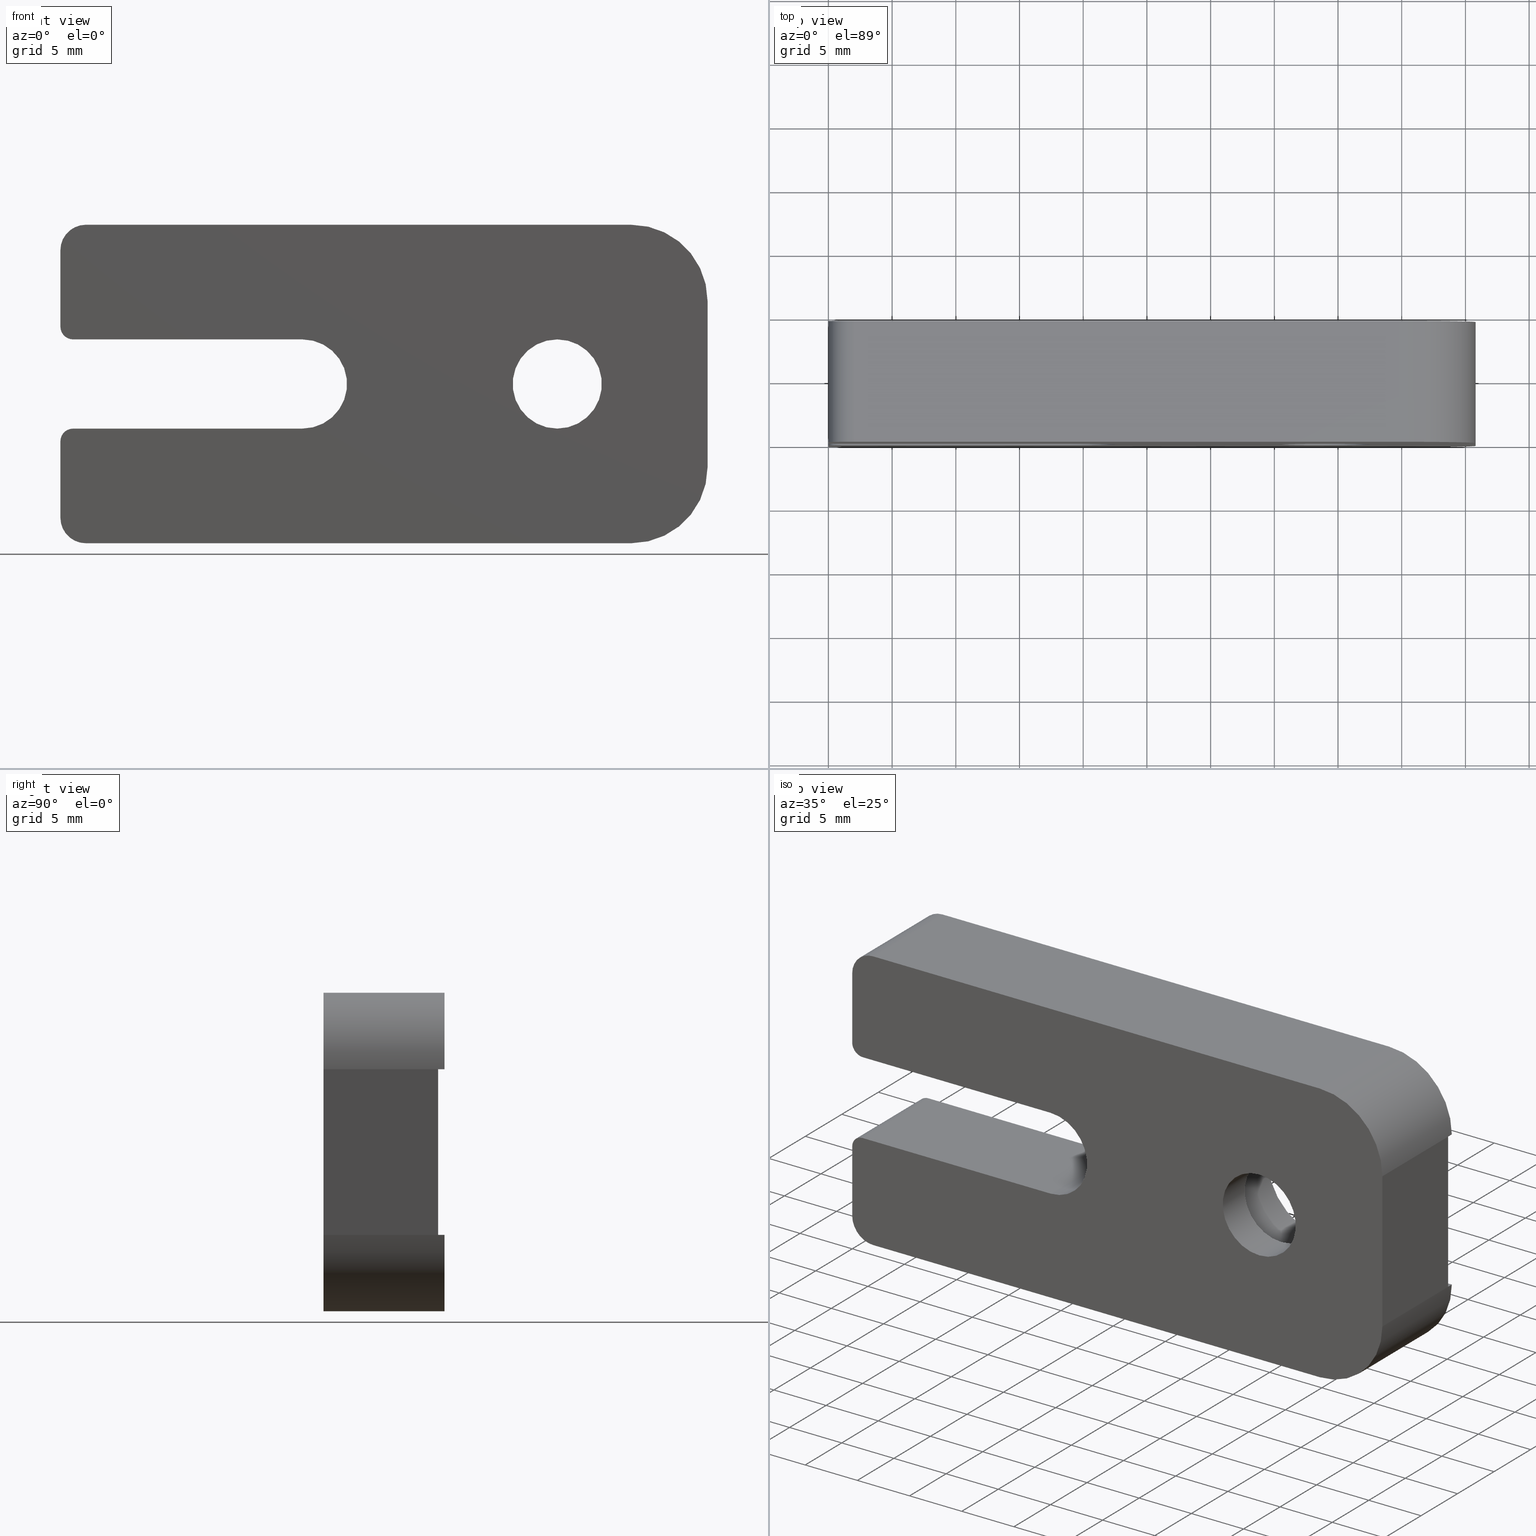
[diagram: canonical four-view strip — front | top / right | iso, engineering-drawing reading convention]
A machine part, canonical four-view strip (front | top / right | iso — engineering-drawing reading convention). The complete STEP part file that produces these views, byte-faithful:
ISO-10303-21;
HEADER;
FILE_DESCRIPTION (( 'STEP AP203' ),
    '1' );
FILE_NAME ('SB-05.step',
    '2017-01-11T07:28:07',
    ( '�K�P' ),
    ( '' ),
    'SwSTEP 2.0',
    'SolidWorks 2012',
    '' );
FILE_SCHEMA (( 'CONFIG_CONTROL_DESIGN' ));
ENDSEC;

DATA;
#1 = MANIFOLD_SOLID_BREP ( '�ꨤ3', #235 ) ;
#2 = UNCERTAINTY_MEASURE_WITH_UNIT (LENGTH_MEASURE( 1.000000000000000100E-005 ), #204, 'distance_accuracy_value', 'NONE');
#3 = ADVANCED_BREP_SHAPE_REPRESENTATION ( 'SB-05', ( #1, #756 ), #732 ) ;
#4 = EDGE_CURVE ( 'NONE', #706, #721, #658, .T. ) ;
#5 = EDGE_CURVE ( 'NONE', #703, #691, #655, .T. ) ;
#6 = EDGE_CURVE ( 'NONE', #712, #718, #659, .T. ) ;
#7 = AXIS2_PLACEMENT_3D ( 'NONE', #390, #383, #438 ) ;
#8 = EDGE_CURVE ( 'NONE', #709, #713, #656, .T. ) ;
#9 = EDGE_CURVE ( 'NONE', #704, #708, #653, .T. ) ;
#10 = EDGE_CURVE ( 'NONE', #698, #713, #651, .T. ) ;
#11 = EDGE_CURVE ( 'NONE', #710, #711, #649, .T. ) ;
#12 = AXIS2_PLACEMENT_3D ( 'NONE', #379, #350, #395 ) ;
#13 = EDGE_CURVE ( 'NONE', #698, #705, #647, .T. ) ;
#14 = AXIS2_PLACEMENT_3D ( 'NONE', #378, #420, #415 ) ;
#15 = AXIS2_PLACEMENT_3D ( 'NONE', #122, #80, #79 ) ;
#16 = EDGE_CURVE ( 'NONE', #688, #699, #643, .T. ) ;
#17 = EDGE_CURVE ( 'NONE', #530, #530, #645, .T. ) ;
#18 = EDGE_CURVE ( 'NONE', #717, #718, #639, .T. ) ;
#19 = EDGE_CURVE ( 'NONE', #700, #701, #642, .T. ) ;
#20 = EDGE_CURVE ( 'NONE', #702, #699, #640, .T. ) ;
#21 = EDGE_CURVE ( 'NONE', #700, #703, #636, .T. ) ;
#22 = AXIS2_PLACEMENT_3D ( 'NONE', #92, #118, #114 ) ;
#23 = EDGE_CURVE ( 'NONE', #721, #696, #634, .T. ) ;
#24 = EDGE_CURVE ( 'NONE', #699, #690, #635, .T. ) ;
#25 = EDGE_CURVE ( 'NONE', #694, #692, #631, .T. ) ;
#26 = EDGE_CURVE ( 'NONE', #694, #702, #633, .T. ) ;
#27 = EDGE_CURVE ( 'NONE', #718, #716, #627, .T. ) ;
#28 = EDGE_CURVE ( 'NONE', #691, #710, #625, .T. ) ;
#29 = AXIS2_PLACEMENT_3D ( 'NONE', #368, #367, #399 ) ;
#30 = AXIS2_PLACEMENT_3D ( 'NONE', #87, #112, #83 ) ;
#31 = EDGE_CURVE ( 'NONE', #696, #689, #624, .T. ) ;
#32 = EDGE_CURVE ( 'NONE', #708, #711, #622, .T. ) ;
#33 = EDGE_CURVE ( 'NONE', #525, #525, #621, .T. ) ;
#34 = AXIS2_PLACEMENT_3D ( 'NONE', #111, #93, #124 ) ;
#35 = AXIS2_PLACEMENT_3D ( 'NONE', #414, #441, #384 ) ;
#36 = EDGE_CURVE ( 'NONE', #715, #716, #618, .T. ) ;
#37 = AXIS2_PLACEMENT_3D ( 'NONE', #416, #365, #422 ) ;
#38 = EDGE_CURVE ( 'NONE', #719, #720, #629, .T. ) ;
#39 = EDGE_CURVE ( 'NONE', #701, #707, #615, .T. ) ;
#40 = EDGE_CURVE ( 'NONE', #720, #715, #614, .T. ) ;
#41 = EDGE_CURVE ( 'NONE', #716, #719, #612, .T. ) ;
#42 = AXIS2_PLACEMENT_3D ( 'NONE', #95, #100, #103 ) ;
#43 = EDGE_CURVE ( 'NONE', #689, #690, #610, .T. ) ;
#44 = EDGE_CURVE ( 'NONE', #712, #714, #608, .T. ) ;
#45 = AXIS2_PLACEMENT_3D ( 'NONE', #126, #123, #116 ) ;
#46 = EDGE_CURVE ( 'NONE', #714, #717, #606, .T. ) ;
#47 = EDGE_CURVE ( 'NONE', #702, #703, #604, .T. ) ;
#48 = EDGE_CURVE ( 'NONE', #710, #713, #602, .T. ) ;
#49 = EDGE_CURVE ( 'NONE', #690, #692, #600, .T. ) ;
#50 = AXIS2_PLACEMENT_3D ( 'NONE', #408, #434, #373 ) ;
#51 = AXIS2_PLACEMENT_3D ( 'NONE', #442, #410, #380 ) ;
#52 = EDGE_CURVE ( 'NONE', #526, #526, #598, .T. ) ;
#53 = EDGE_CURVE ( 'NONE', #697, #696, #596, .T. ) ;
#54 = AXIS2_PLACEMENT_3D ( 'NONE', #382, #439, #386 ) ;
#55 = EDGE_CURVE ( 'NONE', #695, #697, #619, .T. ) ;
#56 = EDGE_CURVE ( 'NONE', #705, #700, #593, .T. ) ;
#57 = AXIS2_PLACEMENT_3D ( 'NONE', #377, #356, #381 ) ;
#58 = EDGE_CURVE ( 'NONE', #717, #708, #592, .T. ) ;
#59 = EDGE_CURVE ( 'NONE', #688, #697, #590, .T. ) ;
#60 = EDGE_CURVE ( 'NONE', #720, #693, #589, .T. ) ;
#61 = EDGE_CURVE ( 'NONE', #705, #707, #588, .T. ) ;
#62 = EDGE_CURVE ( 'NONE', #707, #709, #587, .T. ) ;
#63 = AXIS2_PLACEMENT_3D ( 'NONE', #125, #99, #351 ) ;
#64 = EDGE_CURVE ( 'NONE', #704, #701, #585, .T. ) ;
#65 = EDGE_CURVE ( 'NONE', #527, #527, #584, .T. ) ;
#66 = EDGE_CURVE ( 'NONE', #695, #719, #581, .T. ) ;
#67 = EDGE_CURVE ( 'NONE', #715, #712, #582, .T. ) ;
#68 = EDGE_CURVE ( 'NONE', #689, #688, #583, .T. ) ;
#69 = EDGE_CURVE ( 'NONE', #694, #691, #580, .T. ) ;
#70 = EDGE_CURVE ( 'NONE', #693, #695, #578, .T. ) ;
#71 = EDGE_CURVE ( 'NONE', #706, #694, #576, .T. ) ;
#72 = EDGE_CURVE ( 'NONE', #721, #692, #574, .T. ) ;
#73 = EDGE_CURVE ( 'NONE', #693, #706, #572, .T. ) ;
#74 = EDGE_CURVE ( 'NONE', #711, #714, #570, .T. ) ;
#75 = EDGE_CURVE ( 'NONE', #691, #698, #568, .T. ) ;
#76 = EDGE_CURVE ( 'NONE', #709, #704, #567, .T. ) ;
#77 = DIRECTION ( 'NONE',  ( 0.0000000000000000000, -0.0000000000000000000, 1.000000000000000000 ) ) ;
#78 = CARTESIAN_POINT ( 'NONE',  ( 0.0000000000000000000, 0.0000000000000000000, 0.0000000000000000000 ) ) ;
#79 = DIRECTION ( 'NONE',  ( 0.0000000000000000000, 0.0000000000000000000, 1.000000000000000000 ) ) ;
#80 = DIRECTION ( 'NONE',  ( -0.0000000000000000000, -1.000000000000000000, -0.0000000000000000000 ) ) ;
#81 = CARTESIAN_POINT ( 'NONE',  ( -1.541976423090495800E-015, 9.500000000000000000, -16.99999999999999600 ) ) ;
#82 = CARTESIAN_POINT ( 'NONE',  ( 0.0000000000000000000, 9.500000000000000000, 0.0000000000000000000 ) ) ;
#83 = DIRECTION ( 'NONE',  ( 1.156482317317871300E-015, 0.0000000000000000000, 1.000000000000000000 ) ) ;
#84 = DIRECTION ( 'NONE',  ( 1.541976423090494400E-015, -0.0000000000000000000, 1.000000000000000000 ) ) ;
#85 = CARTESIAN_POINT ( 'NONE',  ( 0.0000000000000000000, 9.000000000000000000, -19.00000000000000400 ) ) ;
#86 = DIRECTION ( 'NONE',  ( -1.000000000000000000, 0.0000000000000000000, 0.0000000000000000000 ) ) ;
#87 = CARTESIAN_POINT ( 'NONE',  ( 44.79999999999998300, 0.0000000000000000000, -19.00000000000000400 ) ) ;
#88 = DIRECTION ( 'NONE',  ( -0.0000000000000000000, -0.0000000000000000000, 1.000000000000000000 ) ) ;
#89 = DIRECTION ( 'NONE',  ( 1.541976423090494400E-015, -0.0000000000000000000, 1.000000000000000000 ) ) ;
#90 = CARTESIAN_POINT ( 'NONE',  ( 50.79999999999999700, 9.500000000000000000, -6.000000000000003600 ) ) ;
#91 = DIRECTION ( 'NONE',  ( 1.000000000000000000, 0.0000000000000000000, 0.0000000000000000000 ) ) ;
#92 = CARTESIAN_POINT ( 'NONE',  ( 2.000000000000000000, 9.500000000000000000, -2.000000000000000000 ) ) ;
#93 = DIRECTION ( 'NONE',  ( 0.0000000000000000000, 1.000000000000000000, 0.0000000000000000000 ) ) ;
#94 = DIRECTION ( 'NONE',  ( 0.0000000000000000000, 0.0000000000000000000, 1.000000000000000000 ) ) ;
#95 = CARTESIAN_POINT ( 'NONE',  ( 44.79999999999999700, 0.0000000000000000000, -6.000000000000000000 ) ) ;
#96 = CARTESIAN_POINT ( 'NONE',  ( 18.99999999999999600, 0.0000000000000000000, -16.00000000000000000 ) ) ;
#97 = CARTESIAN_POINT ( 'NONE',  ( 50.79999999999999700, 9.500000000000000000, -19.00000000000000400 ) ) ;
#98 = CARTESIAN_POINT ( 'NONE',  ( 44.79999999999999700, 9.500000000000000000, 0.0000000000000000000 ) ) ;
#99 = DIRECTION ( 'NONE',  ( -0.0000000000000000000, -1.000000000000000000, -0.0000000000000000000 ) ) ;
#100 = DIRECTION ( 'NONE',  ( -0.0000000000000000000, -1.000000000000000000, -0.0000000000000000000 ) ) ;
#101 = DIRECTION ( 'NONE',  ( -0.0000000000000000000, -1.000000000000000000, -0.0000000000000000000 ) ) ;
#102 = CARTESIAN_POINT ( 'NONE',  ( -1.387778780781445700E-014, 0.0000000000000000000, -25.00000000000000000 ) ) ;
#103 = DIRECTION ( 'NONE',  ( -1.156482317317871300E-015, 0.0000000000000000000, 1.000000000000000000 ) ) ;
#104 = CARTESIAN_POINT ( 'NONE',  ( 18.99999999999999600, 9.500000000000000000, -16.00000000000000000 ) ) ;
#105 = CARTESIAN_POINT ( 'NONE',  ( 50.79999999999998300, 9.500000000000000000, -19.00000000000000700 ) ) ;
#106 = DIRECTION ( 'NONE',  ( -0.0000000000000000000, 1.000000000000000000, -0.0000000000000000000 ) ) ;
#107 = DIRECTION ( 'NONE',  ( 1.000000000000000000, -0.0000000000000000000, -1.826024711554534200E-016 ) ) ;
#108 = DIRECTION ( 'NONE',  ( -0.0000000000000000000, 1.000000000000000000, -0.0000000000000000000 ) ) ;
#109 = CARTESIAN_POINT ( 'NONE',  ( 18.99999999999999600, 9.500000000000000000, -9.000000000000001800 ) ) ;
#110 = DIRECTION ( 'NONE',  ( -0.0000000000000000000, 1.000000000000000000, -0.0000000000000000000 ) ) ;
#111 = CARTESIAN_POINT ( 'NONE',  ( 38.99999999999999300, 0.0000000000000000000, -12.50000000000000400 ) ) ;
#112 = DIRECTION ( 'NONE',  ( -0.0000000000000000000, -1.000000000000000000, -0.0000000000000000000 ) ) ;
#113 = CARTESIAN_POINT ( 'NONE',  ( 0.0000000000000000000, 9.000000000000000000, -6.000000000000003600 ) ) ;
#114 = DIRECTION ( 'NONE',  ( 0.0000000000000000000, 0.0000000000000000000, 1.000000000000000000 ) ) ;
#115 = CARTESIAN_POINT ( 'NONE',  ( 0.0000000000000000000, 0.0000000000000000000, -15.99999999999999600 ) ) ;
#116 = DIRECTION ( 'NONE',  ( 0.0000000000000000000, 0.0000000000000000000, 1.000000000000000000 ) ) ;
#117 = CARTESIAN_POINT ( 'NONE',  ( 0.0000000000000000000, 9.500000000000000000, -15.99999999999999600 ) ) ;
#118 = DIRECTION ( 'NONE',  ( 0.0000000000000000000, 1.000000000000000000, 0.0000000000000000000 ) ) ;
#119 = CARTESIAN_POINT ( 'NONE',  ( 50.79999999999999700, 9.000000000000000000, -6.000000000000003600 ) ) ;
#120 = DIRECTION ( 'NONE',  ( -1.000000000000000000, 0.0000000000000000000, 0.0000000000000000000 ) ) ;
#121 = DIRECTION ( 'NONE',  ( -1.000000000000000000, -0.0000000000000000000, -0.0000000000000000000 ) ) ;
#122 = CARTESIAN_POINT ( 'NONE',  ( 18.99999999999999600, 0.0000000000000000000, -12.50000000000000000 ) ) ;
#123 = DIRECTION ( 'NONE',  ( 0.0000000000000000000, 1.000000000000000000, 0.0000000000000000000 ) ) ;
#124 = DIRECTION ( 'NONE',  ( 0.0000000000000000000, 0.0000000000000000000, 1.000000000000000000 ) ) ;
#125 = CARTESIAN_POINT ( 'NONE',  ( 38.99999999999999300, 2.999999999999999100, -12.50000000000000400 ) ) ;
#126 = CARTESIAN_POINT ( 'NONE',  ( 44.79999999999998300, 9.500000000000000000, -19.00000000000000400 ) ) ;
#127 = DIRECTION ( 'NONE',  ( -0.0000000000000000000, 1.000000000000000000, -0.0000000000000000000 ) ) ;
#128 = DIRECTION ( 'NONE',  ( -0.0000000000000000000, 1.000000000000000000, -0.0000000000000000000 ) ) ;
#129 = DIRECTION ( 'NONE',  ( 1.000000000000000000, 0.0000000000000000000, -9.130123557772672000E-017 ) ) ;
#130 = CARTESIAN_POINT ( 'NONE',  ( 50.79999999999999700, 9.000000000000000000, -19.00000000000000400 ) ) ;
#131 = DIRECTION ( 'NONE',  ( 0.0000000000000000000, -1.000000000000000000, 0.0000000000000000000 ) ) ;
#132 = ADVANCED_FACE ( 'NONE', ( #562, #597 ), #443, .F. ) ;
#133 = ADVANCED_FACE ( 'NONE', ( #563, #559 ), #433, .F. ) ;
#134 = ADVANCED_FACE ( 'NONE', ( #560 ), #363, .F. ) ;
#135 = ADVANCED_FACE ( 'NONE', ( #561 ), #400, .F. ) ;
#136 = ADVANCED_FACE ( 'NONE', ( #558 ), #364, .F. ) ;
#137 = ADVANCED_FACE ( 'NONE', ( #557 ), #394, .F. ) ;
#138 = ADVANCED_FACE ( 'NONE', ( #556 ), #552, .T. ) ;
#139 = ADVANCED_FACE ( 'NONE', ( #554 ), #550, .T. ) ;
#140 = ADVANCED_FACE ( 'NONE', ( #555 ), #548, .T. ) ;
#141 = ADVANCED_FACE ( 'NONE', ( #565 ), #546, .T. ) ;
#142 = ADVANCED_FACE ( 'NONE', ( #553 ), #544, .T. ) ;
#143 = ADVANCED_FACE ( 'NONE', ( #551 ), #481, .F. ) ;
#144 = ADVANCED_FACE ( 'NONE', ( #547 ), #479, .F. ) ;
#145 = ADVANCED_FACE ( 'NONE', ( #549 ), #473, .F. ) ;
#146 = ADVANCED_FACE ( 'NONE', ( #543 ), #539, .T. ) ;
#147 = ADVANCED_FACE ( 'NONE', ( #541 ), #458, .T. ) ;
#148 = ADVANCED_FACE ( 'NONE', ( #545, #537 ), #535, .F. ) ;
#149 = ADVANCED_FACE ( 'NONE', ( #540, #534 ), #248, .T. ) ;
#150 = ADVANCED_FACE ( 'NONE', ( #538, #532 ), #531, .F. ) ;
#151 = ADVANCED_FACE ( 'NONE', ( #542 ), #251, .T. ) ;
#152 = ADVANCED_FACE ( 'NONE', ( #536 ), #243, .F. ) ;
#153 = ADVANCED_FACE ( 'NONE', ( #533 ), #528, .F. ) ;
#154 = ADVANCED_FACE ( 'NONE', ( #529 ), #161, .F. ) ;
#155 = CARTESIAN_POINT ( 'NONE',  ( 18.99999999999999600, 9.500000000000000000, -9.000000000000000000 ) ) ;
#156 = DESIGN_CONTEXT ( 'detailed design', #213, 'design' ) ;
#157 = PRODUCT_DEFINITION_SHAPE ( 'NONE', 'NONE',  #762 ) ;
#158 = DIRECTION ( 'NONE',  ( -0.0000000000000000000, -1.000000000000000000, -0.0000000000000000000 ) ) ;
#159 = CARTESIAN_POINT ( 'NONE',  ( 18.99999999999999600, 9.500000000000000000, -12.50000000000000000 ) ) ;
#160 = DIRECTION ( 'NONE',  ( 0.0000000000000000000, 0.0000000000000000000, -1.000000000000000000 ) ) ;
#161 = PLANE ( 'NONE',  #726 ) ;
#162 = CARTESIAN_POINT ( 'NONE',  ( 44.79999999999999700, 9.500000000000000000, 0.0000000000000000000 ) ) ;
#163 = CARTESIAN_POINT ( 'NONE',  ( 2.000000000000000000, 9.500000000000000000, 0.0000000000000000000 ) ) ;
#164 = CARTESIAN_POINT ( 'NONE',  ( 18.99999999999999600, 9.500000000000000000, -16.00000000000000000 ) ) ;
#165 = DIRECTION ( 'NONE',  ( -1.826024711554534400E-016, 0.0000000000000000000, -1.000000000000000000 ) ) ;
#166 = DIRECTION ( 'NONE',  ( -1.000000000000000000, 0.0000000000000000000, 1.826024711554534400E-016 ) ) ;
#167 = CARTESIAN_POINT ( 'NONE',  ( 0.0000000000000000000, 0.0000000000000000000, -7.999999999999998200 ) ) ;
#168 = CARTESIAN_POINT ( 'NONE',  ( 2.000000000000000000, 0.0000000000000000000, 0.0000000000000000000 ) ) ;
#169 = CARTESIAN_POINT ( 'NONE',  ( 50.79999999999999700, 9.000000000000000000, -19.00000000000000400 ) ) ;
#170 = CARTESIAN_POINT ( 'NONE',  ( 0.0000000000000000000, 9.000000000000000000, -8.000000000000001800 ) ) ;
#171 = CARTESIAN_POINT ( 'NONE',  ( 50.79999999999999700, 9.500000000000000000, -6.000000000000003600 ) ) ;
#172 = CARTESIAN_POINT ( 'NONE',  ( 50.79999999999999700, 9.000000000000000000, -6.000000000000003600 ) ) ;
#173 = CARTESIAN_POINT ( 'NONE',  ( 0.0000000000000000000, 9.500000000000000000, -2.000000000000000000 ) ) ;
#174 = CARTESIAN_POINT ( 'NONE',  ( 0.0000000000000000000, 0.0000000000000000000, -2.000000000000000000 ) ) ;
#175 = CARTESIAN_POINT ( 'NONE',  ( 50.79999999999998300, 9.500000000000000000, -19.00000000000000400 ) ) ;
#176 = CARTESIAN_POINT ( 'NONE',  ( 44.79999999999999700, 0.0000000000000000000, 0.0000000000000000000 ) ) ;
#177 = CARTESIAN_POINT ( 'NONE',  ( 44.79999999999998300, 0.0000000000000000000, -25.00000000000000000 ) ) ;
#178 = CARTESIAN_POINT ( 'NONE',  ( 1.999999999999989100, 0.0000000000000000000, -25.00000000000000000 ) ) ;
#179 = CARTESIAN_POINT ( 'NONE',  ( 50.79999999999999700, 0.0000000000000000000, -6.000000000000003600 ) ) ;
#180 = CARTESIAN_POINT ( 'NONE',  ( 50.79999999999998300, 0.0000000000000000000, -19.00000000000000700 ) ) ;
#181 = CARTESIAN_POINT ( 'NONE',  ( -1.079383496163346100E-014, 0.0000000000000000000, -22.99999999999999600 ) ) ;
#182 = CARTESIAN_POINT ( 'NONE',  ( 44.79999999999998300, 9.500000000000000000, -25.00000000000000000 ) ) ;
#183 = CARTESIAN_POINT ( 'NONE',  ( 0.0000000000000000000, 9.000000000000000000, -6.000000000000003600 ) ) ;
#184 = CARTESIAN_POINT ( 'NONE',  ( 1.999999999999989100, 9.500000000000000000, -25.00000000000000000 ) ) ;
#185 = CARTESIAN_POINT ( 'NONE',  ( -1.541976423090495800E-015, 0.0000000000000000000, -16.99999999999999600 ) ) ;
#186 = CARTESIAN_POINT ( 'NONE',  ( -1.079383496163346100E-014, 9.500000000000000000, -22.99999999999999600 ) ) ;
#187 = CARTESIAN_POINT ( 'NONE',  ( 0.0000000000000000000, 9.000000000000000000, -19.00000000000000400 ) ) ;
#188 = CARTESIAN_POINT ( 'NONE',  ( 0.0000000000000000000, 9.000000000000000000, -16.99999999999999600 ) ) ;
#189 = CARTESIAN_POINT ( 'NONE',  ( 18.99999999999999600, 9.000000000000000000, -16.00000000000000000 ) ) ;
#190 = CARTESIAN_POINT ( 'NONE',  ( 0.0000000000000000000, 9.500000000000000000, -19.00000000000000400 ) ) ;
#191 = CARTESIAN_POINT ( 'NONE',  ( 1.000000000000000900, 9.000000000000000000, -15.99999999999999600 ) ) ;
#192 = CARTESIAN_POINT ( 'NONE',  ( 18.99999999999999600, 9.000000000000000000, -9.000000000000000000 ) ) ;
#193 = CARTESIAN_POINT ( 'NONE',  ( 18.99999999999999600, 0.0000000000000000000, -9.000000000000001800 ) ) ;
#194 = CARTESIAN_POINT ( 'NONE',  ( 1.000000000000000900, 0.0000000000000000000, -15.99999999999999600 ) ) ;
#195 = CARTESIAN_POINT ( 'NONE',  ( 18.99999999999999600, 0.0000000000000000000, -16.00000000000000000 ) ) ;
#196 = CARTESIAN_POINT ( 'NONE',  ( 1.000000000000000900, 0.0000000000000000000, -8.999999999999998200 ) ) ;
#197 = CARTESIAN_POINT ( 'NONE',  ( 1.000000000000000900, 9.000000000000000000, -8.999999999999998200 ) ) ;
#198 = CARTESIAN_POINT ( 'NONE',  ( 0.0000000000000000000, 9.500000000000000000, -6.000000000000003600 ) ) ;
#199 = CARTESIAN_POINT ( 'NONE',  ( 38.99999999999999300, 2.999999999999999100, -9.000000000000005300 ) ) ;
#200 = CARTESIAN_POINT ( 'NONE',  ( 38.99999999999999300, 0.0000000000000000000, -9.000000000000005300 ) ) ;
#201 = CARTESIAN_POINT ( 'NONE',  ( 38.99999999999999300, 2.999999999999999100, -7.000000000000008000 ) ) ;
#202 = CARTESIAN_POINT ( 'NONE',  ( 38.99999999999999300, 9.000000000000000000, -7.000000000000008000 ) ) ;
#203 = CARTESIAN_POINT ( 'NONE',  ( 0.0000000000000000000, 0.0000000000000000000, 0.0000000000000000000 ) ) ;
#204 =( LENGTH_UNIT ( ) NAMED_UNIT ( * ) SI_UNIT ( .MILLI., .METRE. ) );
#205 =( NAMED_UNIT ( * ) PLANE_ANGLE_UNIT ( ) SI_UNIT ( $, .RADIAN. ) );
#206 =( NAMED_UNIT ( * ) SI_UNIT ( $, .STERADIAN. ) SOLID_ANGLE_UNIT ( ) );
#207 = APPLICATION_PROTOCOL_DEFINITION ( 'international standard', 'config_control_design', 1994, #208 ) ;
#208 = APPLICATION_CONTEXT ( 'configuration controlled 3d designs of mechanical parts and assemblies' ) ;
#209 = DIRECTION ( 'NONE',  ( 0.0000000000000000000, 0.0000000000000000000, 1.000000000000000000 ) ) ;
#210 = DIRECTION ( 'NONE',  ( 1.000000000000000000, 0.0000000000000000000, 0.0000000000000000000 ) ) ;
#211 = MECHANICAL_CONTEXT ( 'NONE', #208, 'mechanical' ) ;
#212 = PERSON_AND_ORGANIZATION_ROLE ( 'design_owner' ) ;
#213 = APPLICATION_CONTEXT ( 'configuration controlled 3d designs of mechanical parts and assemblies' ) ;
#214 = APPLICATION_PROTOCOL_DEFINITION ( 'international standard', 'config_control_design', 1994, #213 ) ;
#215 = APPROVAL_STATUS ( 'not_yet_approved' ) ;
#216 = APPROVAL_ROLE ( '' ) ;
#217 = PERSON_AND_ORGANIZATION_ROLE ( 'creator' ) ;
#218 = DATE_TIME_ROLE ( 'creation_date' ) ;
#219 = APPROVAL_STATUS ( 'not_yet_approved' ) ;
#220 = APPROVAL_ROLE ( '' ) ;
#221 = PERSON_AND_ORGANIZATION_ROLE ( 'creator' ) ;
#222 = PERSON_AND_ORGANIZATION_ROLE ( 'design_supplier' ) ;
#223 = SECURITY_CLASSIFICATION_LEVEL ( 'unclassified' ) ;
#224 = PERSON_AND_ORGANIZATION_ROLE ( 'classification_officer' ) ;
#225 = DATE_TIME_ROLE ( 'classification_date' ) ;
#226 = APPROVAL_STATUS ( 'not_yet_approved' ) ;
#227 = APPROVAL_ROLE ( '' ) ;
#228 = ORIENTED_EDGE ( 'NONE', *, *, #49, .T. ) ;
#229 = ORIENTED_EDGE ( 'NONE', *, *, #17, .F. ) ;
#230 = EDGE_LOOP ( 'NONE', ( #272, #271, #270, #269, #268 ) ) ;
#231 = ORIENTED_EDGE ( 'NONE', *, *, #72, .F. ) ;
#232 = EDGE_LOOP ( 'NONE', ( #237 ) ) ;
#233 = ORIENTED_EDGE ( 'NONE', *, *, #43, .T. ) ;
#234 = ORIENTED_EDGE ( 'NONE', *, *, #23, .T. ) ;
#235 = CLOSED_SHELL ( 'NONE', ( #150, #147, #145, #137, #143, #135, #136, #154, #153, #152, #151, #132, #133, #144, #134, #149, #148, #146, #142, #141, #140, #139, #138 ) ) ;
#236 = EDGE_LOOP ( 'NONE', ( #303, #304, #306, #305, #274 ) ) ;
#237 = ORIENTED_EDGE ( 'NONE', *, *, #33, .F. ) ;
#238 = EDGE_LOOP ( 'NONE', ( #664, #663, #662, #661 ) ) ;
#239 = ORIENTED_EDGE ( 'NONE', *, *, #31, .T. ) ;
#240 = EDGE_LOOP ( 'NONE', ( #255, #254, #253, #723 ) ) ;
#241 = ORIENTED_EDGE ( 'NONE', *, *, #73, .F. ) ;
#242 = CARTESIAN_POINT ( 'NONE',  ( 18.99999999999999600, 9.500000000000000000, -12.50000000000000000 ) ) ;
#243 = PLANE ( 'NONE',  #730 ) ;
#244 = DIRECTION ( 'NONE',  ( 0.0000000000000000000, 1.000000000000000000, 0.0000000000000000000 ) ) ;
#245 = CARTESIAN_POINT ( 'NONE',  ( 38.99999999999999300, 0.0000000000000000000, -12.50000000000000400 ) ) ;
#246 = DIRECTION ( 'NONE',  ( 0.0000000000000000000, -0.0000000000000000000, 1.000000000000000000 ) ) ;
#247 = DIRECTION ( 'NONE',  ( -0.0000000000000000000, 1.000000000000000000, -0.0000000000000000000 ) ) ;
#248 = PLANE ( 'NONE',  #737 ) ;
#249 = DIRECTION ( 'NONE',  ( 0.0000000000000000000, 0.0000000000000000000, 1.000000000000000000 ) ) ;
#250 = CARTESIAN_POINT ( 'NONE',  ( 38.99999999999999300, 2.999999999999999100, -12.50000000000000400 ) ) ;
#251 = PLANE ( 'NONE',  #733 ) ;
#252 = DIRECTION ( 'NONE',  ( 0.0000000000000000000, 1.000000000000000000, 0.0000000000000000000 ) ) ;
#253 = ORIENTED_EDGE ( 'NONE', *, *, #58, .F. ) ;
#254 = ORIENTED_EDGE ( 'NONE', *, *, #32, .F. ) ;
#255 = ORIENTED_EDGE ( 'NONE', *, *, #74, .F. ) ;
#256 = ORIENTED_EDGE ( 'NONE', *, *, #70, .F. ) ;
#257 = ORIENTED_EDGE ( 'NONE', *, *, #66, .F. ) ;
#258 = ORIENTED_EDGE ( 'NONE', *, *, #38, .F. ) ;
#259 = ORIENTED_EDGE ( 'NONE', *, *, #60, .F. ) ;
#260 = ORIENTED_EDGE ( 'NONE', *, *, #76, .F. ) ;
#261 = ORIENTED_EDGE ( 'NONE', *, *, #64, .F. ) ;
#262 = ORIENTED_EDGE ( 'NONE', *, *, #39, .F. ) ;
#263 = ORIENTED_EDGE ( 'NONE', *, *, #62, .F. ) ;
#264 = ORIENTED_EDGE ( 'NONE', *, *, #68, .F. ) ;
#265 = ORIENTED_EDGE ( 'NONE', *, *, #59, .F. ) ;
#266 = ORIENTED_EDGE ( 'NONE', *, *, #53, .F. ) ;
#267 = ORIENTED_EDGE ( 'NONE', *, *, #31, .F. ) ;
#268 = ORIENTED_EDGE ( 'NONE', *, *, #13, .F. ) ;
#269 = ORIENTED_EDGE ( 'NONE', *, *, #56, .F. ) ;
#270 = ORIENTED_EDGE ( 'NONE', *, *, #21, .F. ) ;
#271 = ORIENTED_EDGE ( 'NONE', *, *, #5, .F. ) ;
#272 = ORIENTED_EDGE ( 'NONE', *, *, #75, .F. ) ;
#273 = ORIENTED_EDGE ( 'NONE', *, *, #75, .T. ) ;
#274 = ORIENTED_EDGE ( 'NONE', *, *, #25, .T. ) ;
#275 = ORIENTED_EDGE ( 'NONE', *, *, #28, .F. ) ;
#276 = ORIENTED_EDGE ( 'NONE', *, *, #48, .F. ) ;
#277 = ORIENTED_EDGE ( 'NONE', *, *, #10, .T. ) ;
#278 = ORIENTED_EDGE ( 'NONE', *, *, #4, .T. ) ;
#279 = ORIENTED_EDGE ( 'NONE', *, *, #71, .F. ) ;
#280 = ORIENTED_EDGE ( 'NONE', *, *, #25, .F. ) ;
#281 = ORIENTED_EDGE ( 'NONE', *, *, #72, .T. ) ;
#282 = ORIENTED_EDGE ( 'NONE', *, *, #67, .F. ) ;
#283 = ORIENTED_EDGE ( 'NONE', *, *, #44, .F. ) ;
#284 = ORIENTED_EDGE ( 'NONE', *, *, #74, .T. ) ;
#285 = ORIENTED_EDGE ( 'NONE', *, *, #11, .T. ) ;
#286 = ORIENTED_EDGE ( 'NONE', *, *, #28, .T. ) ;
#287 = ORIENTED_EDGE ( 'NONE', *, *, #69, .T. ) ;
#288 = ORIENTED_EDGE ( 'NONE', *, *, #71, .T. ) ;
#289 = ORIENTED_EDGE ( 'NONE', *, *, #73, .T. ) ;
#290 = ORIENTED_EDGE ( 'NONE', *, *, #60, .T. ) ;
#291 = ORIENTED_EDGE ( 'NONE', *, *, #40, .F. ) ;
#292 = ORIENTED_EDGE ( 'NONE', *, *, #65, .F. ) ;
#293 = ORIENTED_EDGE ( 'NONE', *, *, #59, .T. ) ;
#294 = ORIENTED_EDGE ( 'NONE', *, *, #16, .F. ) ;
#295 = ORIENTED_EDGE ( 'NONE', *, *, #20, .T. ) ;
#296 = ORIENTED_EDGE ( 'NONE', *, *, #47, .F. ) ;
#297 = ORIENTED_EDGE ( 'NONE', *, *, #21, .T. ) ;
#298 = ORIENTED_EDGE ( 'NONE', *, *, #19, .F. ) ;
#299 = ORIENTED_EDGE ( 'NONE', *, *, #64, .T. ) ;
#300 = ORIENTED_EDGE ( 'NONE', *, *, #9, .F. ) ;
#301 = ORIENTED_EDGE ( 'NONE', *, *, #58, .T. ) ;
#302 = ORIENTED_EDGE ( 'NONE', *, *, #18, .F. ) ;
#303 = ORIENTED_EDGE ( 'NONE', *, *, #49, .F. ) ;
#304 = ORIENTED_EDGE ( 'NONE', *, *, #24, .F. ) ;
#305 = ORIENTED_EDGE ( 'NONE', *, *, #26, .F. ) ;
#306 = ORIENTED_EDGE ( 'NONE', *, *, #20, .F. ) ;
#307 = ORIENTED_EDGE ( 'NONE', *, *, #27, .F. ) ;
#308 = ORIENTED_EDGE ( 'NONE', *, *, #41, .F. ) ;
#309 = ORIENTED_EDGE ( 'NONE', *, *, #66, .T. ) ;
#310 = ORIENTED_EDGE ( 'NONE', *, *, #55, .F. ) ;
#311 = ORIENTED_EDGE ( 'NONE', *, *, #17, .T. ) ;
#312 = ORIENTED_EDGE ( 'NONE', *, *, #13, .T. ) ;
#313 = ORIENTED_EDGE ( 'NONE', *, *, #10, .F. ) ;
#314 = ORIENTED_EDGE ( 'NONE', *, *, #8, .T. ) ;
#315 = ORIENTED_EDGE ( 'NONE', *, *, #52, .T. ) ;
#316 = ORIENTED_EDGE ( 'NONE', *, *, #33, .T. ) ;
#317 = ORIENTED_EDGE ( 'NONE', *, *, #52, .F. ) ;
#318 = ORIENTED_EDGE ( 'NONE', *, *, #65, .T. ) ;
#319 = ORIENTED_EDGE ( 'NONE', *, *, #62, .T. ) ;
#320 = ORIENTED_EDGE ( 'NONE', *, *, #61, .T. ) ;
#321 = ORIENTED_EDGE ( 'NONE', *, *, #36, .T. ) ;
#322 = ORIENTED_EDGE ( 'NONE', *, *, #40, .T. ) ;
#323 = ORIENTED_EDGE ( 'NONE', *, *, #38, .T. ) ;
#324 = ORIENTED_EDGE ( 'NONE', *, *, #53, .T. ) ;
#325 = ORIENTED_EDGE ( 'NONE', *, *, #70, .T. ) ;
#326 = ORIENTED_EDGE ( 'NONE', *, *, #55, .T. ) ;
#327 = EDGE_LOOP ( 'NONE', ( #234, #239, #233, #228, #231 ) ) ;
#328 = EDGE_LOOP ( 'NONE', ( #682, #681, #680, #679 ) ) ;
#329 = EDGE_LOOP ( 'NONE', ( #229 ) ) ;
#330 = EDGE_LOOP ( 'NONE', ( #315 ) ) ;
#331 = EDGE_LOOP ( 'NONE', ( #316 ) ) ;
#332 = EDGE_LOOP ( 'NONE', ( #317 ) ) ;
#333 = EDGE_LOOP ( 'NONE', ( #686, #685, #684, #683 ) ) ;
#334 = EDGE_LOOP ( 'NONE', ( #318 ) ) ;
#335 = EDGE_LOOP ( 'NONE', ( #320, #319, #314, #313, #312 ) ) ;
#336 = EDGE_LOOP ( 'NONE', ( #259, #258, #257, #256 ) ) ;
#337 = EDGE_LOOP ( 'NONE', ( #668, #667, #666, #665 ) ) ;
#338 = EDGE_LOOP ( 'NONE', ( #241, #325, #326, #324, #722, #687 ) ) ;
#339 = EDGE_LOOP ( 'NONE', ( #660, #323, #322, #321 ) ) ;
#340 = EDGE_LOOP ( 'NONE', ( #311 ) ) ;
#341 = EDGE_LOOP ( 'NONE', ( #267, #266, #265, #264 ) ) ;
#342 = EDGE_LOOP ( 'NONE', ( #263, #262, #261, #260 ) ) ;
#343 = EDGE_LOOP ( 'NONE', ( #292 ) ) ;
#344 = EDGE_LOOP ( 'NONE', ( #678, #677, #676, #675 ) ) ;
#345 = EDGE_LOOP ( 'NONE', ( #281, #280, #279, #278 ) ) ;
#346 = EDGE_LOOP ( 'NONE', ( #277, #276, #275, #273 ) ) ;
#347 = EDGE_LOOP ( 'NONE', ( #291, #290, #289, #288, #287, #286, #285, #284, #283, #282 ) ) ;
#348 = EDGE_LOOP ( 'NONE', ( #674, #673, #672, #671, #670, #669 ) ) ;
#349 = EDGE_LOOP ( 'NONE', ( #310, #309, #308, #307, #302, #301, #300, #299, #298, #297, #296, #295, #294, #293 ) ) ;
#350 = DIRECTION ( 'NONE',  ( -0.0000000000000000000, 1.000000000000000000, -0.0000000000000000000 ) ) ;
#351 = DIRECTION ( 'NONE',  ( 0.0000000000000000000, 0.0000000000000000000, 1.000000000000000000 ) ) ;
#352 = DIRECTION ( 'NONE',  ( -0.0000000000000000000, -1.000000000000000000, -0.0000000000000000000 ) ) ;
#353 = CARTESIAN_POINT ( 'NONE',  ( 1.000000000000000900, 9.500000000000000000, -8.999999999999998200 ) ) ;
#354 = DIRECTION ( 'NONE',  ( 0.0000000000000000000, 0.0000000000000000000, -1.000000000000000000 ) ) ;
#355 = DIRECTION ( 'NONE',  ( -1.000000000000000000, -0.0000000000000000000, -0.0000000000000000000 ) ) ;
#356 = DIRECTION ( 'NONE',  ( 0.0000000000000000000, 1.000000000000000000, 0.0000000000000000000 ) ) ;
#357 = CARTESIAN_POINT ( 'NONE',  ( 50.79999999999999700, 9.000000000000000000, -19.00000000000000400 ) ) ;
#358 = CARTESIAN_POINT ( 'NONE',  ( -1.387778780781445700E-014, 9.500000000000000000, -25.00000000000000000 ) ) ;
#359 = DIRECTION ( 'NONE',  ( 0.0000000000000000000, -0.0000000000000000000, 1.000000000000000000 ) ) ;
#360 = DIRECTION ( 'NONE',  ( -0.0000000000000000000, 1.000000000000000000, -0.0000000000000000000 ) ) ;
#361 = DIRECTION ( 'NONE',  ( 0.0000000000000000000, 1.000000000000000000, 0.0000000000000000000 ) ) ;
#362 = CARTESIAN_POINT ( 'NONE',  ( 0.0000000000000000000, 9.500000000000000000, -15.99999999999999600 ) ) ;
#363 = PLANE ( 'NONE',  #744 ) ;
#364 = PLANE ( 'NONE',  #745 ) ;
#365 = DIRECTION ( 'NONE',  ( -0.0000000000000000000, -1.000000000000000000, -0.0000000000000000000 ) ) ;
#366 = CARTESIAN_POINT ( 'NONE',  ( 2.000000000000000000, 9.500000000000000000, 0.0000000000000000000 ) ) ;
#367 = DIRECTION ( 'NONE',  ( 0.0000000000000000000, 1.000000000000000000, 0.0000000000000000000 ) ) ;
#368 = CARTESIAN_POINT ( 'NONE',  ( 38.99999999999999300, 9.000000000000000000, -12.50000000000000400 ) ) ;
#369 = DIRECTION ( 'NONE',  ( 1.000000000000000000, 0.0000000000000000000, -9.130123557772672000E-017 ) ) ;
#370 = DIRECTION ( 'NONE',  ( -1.000000000000000000, 0.0000000000000000000, 1.826024711554534400E-016 ) ) ;
#371 = CARTESIAN_POINT ( 'NONE',  ( 0.0000000000000000000, 9.500000000000000000, 0.0000000000000000000 ) ) ;
#372 = DIRECTION ( 'NONE',  ( -0.0000000000000000000, 1.000000000000000000, -0.0000000000000000000 ) ) ;
#373 = DIRECTION ( 'NONE',  ( 0.0000000000000000000, 0.0000000000000000000, 1.000000000000000000 ) ) ;
#374 = CARTESIAN_POINT ( 'NONE',  ( 0.0000000000000000000, 9.000000000000000000, -19.00000000000000400 ) ) ;
#375 = DIRECTION ( 'NONE',  ( -0.0000000000000000000, 1.000000000000000000, -0.0000000000000000000 ) ) ;
#376 = DIRECTION ( 'NONE',  ( 0.0000000000000000000, -0.0000000000000000000, -1.000000000000000000 ) ) ;
#377 = CARTESIAN_POINT ( 'NONE',  ( 38.99999999999999300, 2.999999999999999100, -12.50000000000000400 ) ) ;
#378 = CARTESIAN_POINT ( 'NONE',  ( 1.000000000000000000, 0.0000000000000000000, -7.999999999999998200 ) ) ;
#379 = CARTESIAN_POINT ( 'NONE',  ( 18.99999999999999600, 9.000000000000000000, -12.50000000000000000 ) ) ;
#380 = DIRECTION ( 'NONE',  ( 0.0000000000000000000, 0.0000000000000000000, 1.000000000000000000 ) ) ;
#381 = DIRECTION ( 'NONE',  ( 0.0000000000000000000, 0.0000000000000000000, 1.000000000000000000 ) ) ;
#382 = CARTESIAN_POINT ( 'NONE',  ( 44.79999999999999700, 9.500000000000000000, -6.000000000000000000 ) ) ;
#383 = DIRECTION ( 'NONE',  ( -0.0000000000000000000, 1.000000000000000000, -0.0000000000000000000 ) ) ;
#384 = DIRECTION ( 'NONE',  ( 0.0000000000000000000, 0.0000000000000000000, 1.000000000000000000 ) ) ;
#385 = DIRECTION ( 'NONE',  ( 1.000000000000000000, 0.0000000000000000000, -0.0000000000000000000 ) ) ;
#386 = DIRECTION ( 'NONE',  ( 0.0000000000000000000, 0.0000000000000000000, 1.000000000000000000 ) ) ;
#387 = CARTESIAN_POINT ( 'NONE',  ( 18.99999999999999600, 9.000000000000000000, -9.000000000000000000 ) ) ;
#388 = CARTESIAN_POINT ( 'NONE',  ( 50.79999999999999700, 9.000000000000000000, -6.000000000000003600 ) ) ;
#389 = DIRECTION ( 'NONE',  ( 0.0000000000000000000, -1.000000000000000000, 0.0000000000000000000 ) ) ;
#390 = CARTESIAN_POINT ( 'NONE',  ( 1.000000000000000000, 9.000000000000000000, -7.999999999999998200 ) ) ;
#391 = DIRECTION ( 'NONE',  ( 0.0000000000000000000, -1.000000000000000000, 0.0000000000000000000 ) ) ;
#392 = DIRECTION ( 'NONE',  ( 0.0000000000000000000, 0.0000000000000000000, 1.000000000000000000 ) ) ;
#393 = DIRECTION ( 'NONE',  ( 1.000000000000000000, 0.0000000000000000000, 0.0000000000000000000 ) ) ;
#394 = PLANE ( 'NONE',  #747 ) ;
#395 = DIRECTION ( 'NONE',  ( 0.0000000000000000000, 0.0000000000000000000, -1.000000000000000000 ) ) ;
#396 = DIRECTION ( 'NONE',  ( 0.0000000000000000000, -1.000000000000000000, 0.0000000000000000000 ) ) ;
#397 = CARTESIAN_POINT ( 'NONE',  ( 44.79999999999998300, 9.500000000000000000, -25.00000000000000000 ) ) ;
#398 = CARTESIAN_POINT ( 'NONE',  ( 50.79999999999999700, 9.000000000000000000, -19.00000000000000400 ) ) ;
#399 = DIRECTION ( 'NONE',  ( 0.0000000000000000000, 0.0000000000000000000, 1.000000000000000000 ) ) ;
#400 = PLANE ( 'NONE',  #746 ) ;
#401 = CARTESIAN_POINT ( 'NONE',  ( 50.79999999999999700, 9.000000000000000000, -19.00000000000000400 ) ) ;
#402 = DIRECTION ( 'NONE',  ( 0.0000000000000000000, 0.0000000000000000000, 1.000000000000000000 ) ) ;
#403 = DIRECTION ( 'NONE',  ( -0.0000000000000000000, -0.0000000000000000000, -1.000000000000000000 ) ) ;
#404 = DIRECTION ( 'NONE',  ( -0.0000000000000000000, 1.000000000000000000, -0.0000000000000000000 ) ) ;
#405 = DIRECTION ( 'NONE',  ( -1.000000000000000000, 0.0000000000000000000, 0.0000000000000000000 ) ) ;
#406 = CARTESIAN_POINT ( 'NONE',  ( 0.0000000000000000000, 9.500000000000000000, -2.000000000000000000 ) ) ;
#407 = DIRECTION ( 'NONE',  ( -0.0000000000000000000, 1.000000000000000000, -0.0000000000000000000 ) ) ;
#408 = CARTESIAN_POINT ( 'NONE',  ( 1.999999999999989100, 0.0000000000000000000, -23.00000000000000000 ) ) ;
#409 = DIRECTION ( 'NONE',  ( -0.0000000000000000000, -0.0000000000000000000, 1.000000000000000000 ) ) ;
#410 = DIRECTION ( 'NONE',  ( 0.0000000000000000000, 1.000000000000000000, 0.0000000000000000000 ) ) ;
#411 = CARTESIAN_POINT ( 'NONE',  ( -1.387778780781445700E-014, 9.500000000000000000, -25.00000000000000000 ) ) ;
#412 = DIRECTION ( 'NONE',  ( -1.000000000000000000, 0.0000000000000000000, 9.130123557772670800E-017 ) ) ;
#413 = CARTESIAN_POINT ( 'NONE',  ( 18.99999999999999600, 9.000000000000000000, -16.00000000000000000 ) ) ;
#414 = CARTESIAN_POINT ( 'NONE',  ( 1.000000000000000900, 0.0000000000000000000, -16.99999999999999600 ) ) ;
#415 = DIRECTION ( 'NONE',  ( 0.0000000000000000000, 0.0000000000000000000, 1.000000000000000000 ) ) ;
#416 = CARTESIAN_POINT ( 'NONE',  ( 2.000000000000000000, 0.0000000000000000000, -2.000000000000000000 ) ) ;
#417 = CARTESIAN_POINT ( 'NONE',  ( 0.0000000000000000000, 0.0000000000000000000, 0.0000000000000000000 ) ) ;
#418 = DIRECTION ( 'NONE',  ( 0.0000000000000000000, -1.000000000000000000, 0.0000000000000000000 ) ) ;
#419 = CARTESIAN_POINT ( 'NONE',  ( 50.79999999999999700, 0.0000000000000000000, 0.0000000000000000000 ) ) ;
#420 = DIRECTION ( 'NONE',  ( -0.0000000000000000000, -1.000000000000000000, -0.0000000000000000000 ) ) ;
#421 = CARTESIAN_POINT ( 'NONE',  ( 18.99999999999999600, 0.0000000000000000000, -9.000000000000000000 ) ) ;
#422 = DIRECTION ( 'NONE',  ( 0.0000000000000000000, 0.0000000000000000000, 1.000000000000000000 ) ) ;
#423 = DIRECTION ( 'NONE',  ( -0.0000000000000000000, 0.0000000000000000000, -1.000000000000000000 ) ) ;
#424 = CARTESIAN_POINT ( 'NONE',  ( 0.0000000000000000000, 9.000000000000000000, -19.00000000000000400 ) ) ;
#425 = CARTESIAN_POINT ( 'NONE',  ( 50.79999999999999700, 9.000000000000000000, -6.000000000000003600 ) ) ;
#426 = DIRECTION ( 'NONE',  ( 0.0000000000000000000, -1.000000000000000000, 0.0000000000000000000 ) ) ;
#427 = DIRECTION ( 'NONE',  ( 0.0000000000000000000, -1.000000000000000000, 0.0000000000000000000 ) ) ;
#428 = DIRECTION ( 'NONE',  ( 1.000000000000000000, -0.0000000000000000000, -0.0000000000000000000 ) ) ;
#429 = DIRECTION ( 'NONE',  ( 1.000000000000000000, -0.0000000000000000000, -0.0000000000000000000 ) ) ;
#430 = CARTESIAN_POINT ( 'NONE',  ( 18.99999999999999600, 0.0000000000000000000, -12.50000000000000000 ) ) ;
#431 = DIRECTION ( 'NONE',  ( -0.0000000000000000000, 1.000000000000000000, -0.0000000000000000000 ) ) ;
#432 = CARTESIAN_POINT ( 'NONE',  ( 1.999999999999989100, 9.500000000000000000, -25.00000000000000000 ) ) ;
#433 = PLANE ( 'NONE',  #749 ) ;
#434 = DIRECTION ( 'NONE',  ( -0.0000000000000000000, -1.000000000000000000, -0.0000000000000000000 ) ) ;
#435 = CARTESIAN_POINT ( 'NONE',  ( 50.79999999999999700, 9.500000000000000000, -6.000000000000003600 ) ) ;
#436 = CARTESIAN_POINT ( 'NONE',  ( 0.0000000000000000000, 9.500000000000000000, -7.999999999999998200 ) ) ;
#437 = DIRECTION ( 'NONE',  ( -5.551115123125782700E-016, 0.0000000000000000000, -1.000000000000000000 ) ) ;
#438 = DIRECTION ( 'NONE',  ( 0.0000000000000000000, 0.0000000000000000000, -1.000000000000000000 ) ) ;
#439 = DIRECTION ( 'NONE',  ( 0.0000000000000000000, 1.000000000000000000, 0.0000000000000000000 ) ) ;
#440 = CARTESIAN_POINT ( 'NONE',  ( 1.000000000000000900, 9.000000000000000000, -16.99999999999999600 ) ) ;
#441 = DIRECTION ( 'NONE',  ( -0.0000000000000000000, -1.000000000000000000, -0.0000000000000000000 ) ) ;
#442 = CARTESIAN_POINT ( 'NONE',  ( 1.999999999999989100, 9.500000000000000000, -23.00000000000000000 ) ) ;
#443 = PLANE ( 'NONE',  #750 ) ;
#444 = CARTESIAN_POINT ( 'NONE',  ( -1.079383496163346100E-014, 9.500000000000000000, -22.99999999999999600 ) ) ;
#445 = CARTESIAN_POINT ( 'NONE',  ( 1.000000000000000900, 9.500000000000000000, -15.99999999999999600 ) ) ;
#446 = DIRECTION ( 'NONE',  ( -1.000000000000000000, 0.0000000000000000000, -0.0000000000000000000 ) ) ;
#447 = CARTESIAN_POINT ( 'NONE',  ( 50.79999999999999700, 9.500000000000000000, 0.0000000000000000000 ) ) ;
#448 = DIRECTION ( 'NONE',  ( 9.130123557772672000E-017, -0.0000000000000000000, 1.000000000000000000 ) ) ;
#449 = CARTESIAN_POINT ( 'NONE',  ( 2.000000000000000000, 9.500000000000000000, -2.000000000000000000 ) ) ;
#450 = CARTESIAN_POINT ( 'NONE',  ( 38.99999999999999300, 2.999999999999999100, -12.50000000000000400 ) ) ;
#451 = DIRECTION ( 'NONE',  ( 0.0000000000000000000, -0.0000000000000000000, 1.000000000000000000 ) ) ;
#452 = DIRECTION ( 'NONE',  ( -1.541976423090494400E-015, 0.0000000000000000000, -1.000000000000000000 ) ) ;
#453 = DIRECTION ( 'NONE',  ( 0.0000000000000000000, -1.000000000000000000, 0.0000000000000000000 ) ) ;
#454 = DIRECTION ( 'NONE',  ( 0.0000000000000000000, 0.0000000000000000000, -1.000000000000000000 ) ) ;
#455 = DIRECTION ( 'NONE',  ( 0.0000000000000000000, 1.000000000000000000, 0.0000000000000000000 ) ) ;
#456 = DIRECTION ( 'NONE',  ( -0.0000000000000000000, 1.000000000000000000, -0.0000000000000000000 ) ) ;
#457 = DIRECTION ( 'NONE',  ( 0.0000000000000000000, 0.0000000000000000000, 1.000000000000000000 ) ) ;
#458 = PLANE ( 'NONE',  #754 ) ;
#459 = DIRECTION ( 'NONE',  ( 1.000000000000000000, 0.0000000000000000000, -1.541976423090494400E-015 ) ) ;
#460 = DIRECTION ( 'NONE',  ( 0.0000000000000000000, -1.000000000000000000, 0.0000000000000000000 ) ) ;
#461 = CARTESIAN_POINT ( 'NONE',  ( 1.999999999999989100, 9.500000000000000000, -23.00000000000000000 ) ) ;
#462 = CARTESIAN_POINT ( 'NONE',  ( 44.79999999999999700, 9.500000000000000000, -6.000000000000000000 ) ) ;
#463 = DIRECTION ( 'NONE',  ( 0.0000000000000000000, -1.000000000000000000, 0.0000000000000000000 ) ) ;
#464 = DIRECTION ( 'NONE',  ( 0.0000000000000000000, 0.0000000000000000000, -1.000000000000000000 ) ) ;
#465 = DIRECTION ( 'NONE',  ( 0.0000000000000000000, 0.0000000000000000000, -1.000000000000000000 ) ) ;
#466 = CARTESIAN_POINT ( 'NONE',  ( 1.000000000000000900, 9.500000000000000000, -16.99999999999999600 ) ) ;
#467 = DIRECTION ( 'NONE',  ( 0.0000000000000000000, 0.0000000000000000000, -1.000000000000000000 ) ) ;
#468 = DIRECTION ( 'NONE',  ( 1.000000000000000000, -0.0000000000000000000, 0.0000000000000000000 ) ) ;
#469 = CARTESIAN_POINT ( 'NONE',  ( 0.0000000000000000000, 9.500000000000000000, 0.0000000000000000000 ) ) ;
#470 = CARTESIAN_POINT ( 'NONE',  ( 18.99999999999999600, 9.500000000000000000, -12.50000000000000000 ) ) ;
#471 = DIRECTION ( 'NONE',  ( 0.0000000000000000000, -1.000000000000000000, 0.0000000000000000000 ) ) ;
#472 = DIRECTION ( 'NONE',  ( 0.0000000000000000000, -1.000000000000000000, 0.0000000000000000000 ) ) ;
#473 = PLANE ( 'NONE',  #757 ) ;
#474 = DIRECTION ( 'NONE',  ( 1.000000000000000000, 0.0000000000000000000, -0.0000000000000000000 ) ) ;
#475 = DIRECTION ( 'NONE',  ( 0.0000000000000000000, 0.0000000000000000000, 1.000000000000000000 ) ) ;
#476 = CARTESIAN_POINT ( 'NONE',  ( 1.000000000000000000, 9.500000000000000000, -7.999999999999998200 ) ) ;
#477 = DIRECTION ( 'NONE',  ( 0.0000000000000000000, 0.0000000000000000000, -1.000000000000000000 ) ) ;
#478 = DIRECTION ( 'NONE',  ( 0.0000000000000000000, 0.0000000000000000000, -1.000000000000000000 ) ) ;
#479 = PLANE ( 'NONE',  #761 ) ;
#480 = DIRECTION ( 'NONE',  ( 5.551115123125782700E-016, 0.0000000000000000000, 1.000000000000000000 ) ) ;
#481 = PLANE ( 'NONE',  #763 ) ;
#482 = DIRECTION ( 'NONE',  ( 0.0000000000000000000, 0.0000000000000000000, -1.000000000000000000 ) ) ;
#483 = DIRECTION ( 'NONE',  ( 0.0000000000000000000, 0.0000000000000000000, -1.000000000000000000 ) ) ;
#484 = DIRECTION ( 'NONE',  ( -1.000000000000000000, 0.0000000000000000000, 5.551115123125782700E-016 ) ) ;
#485 = CARTESIAN_POINT ( 'NONE',  ( 0.0000000000000000000, 9.500000000000000000, 0.0000000000000000000 ) ) ;
#486 = CARTESIAN_POINT ( 'NONE',  ( 50.79999999999999700, 9.000000000000000000, -6.000000000000003600 ) ) ;
#487 = CARTESIAN_POINT ( 'NONE',  ( 44.79999999999998300, 9.500000000000000000, -19.00000000000000400 ) ) ;
#488 = DIRECTION ( 'NONE',  ( 0.0000000000000000000, -1.000000000000000000, 0.0000000000000000000 ) ) ;
#489 = APPROVAL_DATE_TIME ( #490, #743 ) ;
#490 = DATE_AND_TIME ( #491, #492 ) ;
#491 = CALENDAR_DATE ( 2017, 11, 1 ) ;
#492 = LOCAL_TIME ( 15, 28, 7.000000000000000000, #493 ) ;
#493 = COORDINATED_UNIVERSAL_TIME_OFFSET ( 8, 0, .AHEAD. ) ;
#494 = APPROVAL_PERSON_ORGANIZATION ( #495, #743, #227 ) ;
#495 = PERSON_AND_ORGANIZATION ( #725, #523 ) ;
#496 = DATE_AND_TIME ( #497, #498 ) ;
#497 = CALENDAR_DATE ( 2017, 11, 1 ) ;
#498 = LOCAL_TIME ( 15, 28, 7.000000000000000000, #499 ) ;
#499 = COORDINATED_UNIVERSAL_TIME_OFFSET ( 8, 0, .AHEAD. ) ;
#500 = PERSON_AND_ORGANIZATION ( #725, #523 ) ;
#501 = PERSON_AND_ORGANIZATION ( #725, #523 ) ;
#502 = PERSON_AND_ORGANIZATION ( #725, #523 ) ;
#503 = APPROVAL_DATE_TIME ( #504, #731 ) ;
#504 = DATE_AND_TIME ( #505, #506 ) ;
#505 = CALENDAR_DATE ( 2017, 11, 1 ) ;
#506 = LOCAL_TIME ( 15, 28, 7.000000000000000000, #507 ) ;
#507 = COORDINATED_UNIVERSAL_TIME_OFFSET ( 8, 0, .AHEAD. ) ;
#508 = APPROVAL_PERSON_ORGANIZATION ( #509, #731, #220 ) ;
#509 = PERSON_AND_ORGANIZATION ( #725, #523 ) ;
#510 = DATE_AND_TIME ( #511, #512 ) ;
#511 = CALENDAR_DATE ( 2017, 11, 1 ) ;
#512 = LOCAL_TIME ( 15, 28, 7.000000000000000000, #513 ) ;
#513 = COORDINATED_UNIVERSAL_TIME_OFFSET ( 8, 0, .AHEAD. ) ;
#514 = PERSON_AND_ORGANIZATION ( #725, #523 ) ;
#515 = APPROVAL_DATE_TIME ( #516, #765 ) ;
#516 = DATE_AND_TIME ( #517, #518 ) ;
#517 = CALENDAR_DATE ( 2017, 11, 1 ) ;
#518 = LOCAL_TIME ( 15, 28, 7.000000000000000000, #519 ) ;
#519 = COORDINATED_UNIVERSAL_TIME_OFFSET ( 8, 0, .AHEAD. ) ;
#520 = APPROVAL_PERSON_ORGANIZATION ( #521, #765, #216 ) ;
#521 = PERSON_AND_ORGANIZATION ( #725, #523 ) ;
#522 = PERSON_AND_ORGANIZATION ( #725, #523 ) ;
#523 = ORGANIZATION ( 'UNSPECIFIED', 'UNSPECIFIED', '' ) ;
#524 = SHAPE_DEFINITION_REPRESENTATION ( #157, #3 ) ;
#525 = VERTEX_POINT ( 'NONE', #199 ) ;
#526 = VERTEX_POINT ( 'NONE', #201 ) ;
#527 = VERTEX_POINT ( 'NONE', #202 ) ;
#528 = CYLINDRICAL_SURFACE ( 'NONE', #727, 3.499999999999999600 ) ;
#529 = FACE_OUTER_BOUND ( 'NONE', #337, .T. ) ;
#530 = VERTEX_POINT ( 'NONE', #200 ) ;
#531 = CYLINDRICAL_SURFACE ( 'NONE', #735, 3.499999999999999600 ) ;
#532 = FACE_OUTER_BOUND ( 'NONE', #232, .T. ) ;
#533 = FACE_OUTER_BOUND ( 'NONE', #238, .T. ) ;
#534 = FACE_BOUND ( 'NONE', #331, .T. ) ;
#535 = CYLINDRICAL_SURFACE ( 'NONE', #738, 5.499999999999996400 ) ;
#536 = FACE_OUTER_BOUND ( 'NONE', #339, .T. ) ;
#537 = FACE_OUTER_BOUND ( 'NONE', #334, .T. ) ;
#538 = FACE_OUTER_BOUND ( 'NONE', #329, .T. ) ;
#539 = CYLINDRICAL_SURFACE ( 'NONE', #755, 6.000000000000000000 ) ;
#540 = FACE_OUTER_BOUND ( 'NONE', #330, .T. ) ;
#541 = FACE_OUTER_BOUND ( 'NONE', #327, .T. ) ;
#542 = FACE_OUTER_BOUND ( 'NONE', #335, .T. ) ;
#543 = FACE_OUTER_BOUND ( 'NONE', #236, .T. ) ;
#544 = CYLINDRICAL_SURFACE ( 'NONE', #764, 5.999999999999998200 ) ;
#545 = FACE_OUTER_BOUND ( 'NONE', #332, .T. ) ;
#546 = CYLINDRICAL_SURFACE ( 'NONE', #766, 2.000000000000000000 ) ;
#547 = FACE_OUTER_BOUND ( 'NONE', #345, .T. ) ;
#548 = CYLINDRICAL_SURFACE ( 'NONE', #767, 2.000000000000001800 ) ;
#549 = FACE_OUTER_BOUND ( 'NONE', #338, .T. ) ;
#550 = CYLINDRICAL_SURFACE ( 'NONE', #769, 0.9999999999999991100 ) ;
#551 = FACE_OUTER_BOUND ( 'NONE', #328, .T. ) ;
#552 = CYLINDRICAL_SURFACE ( 'NONE', #748, 1.000000000000000900 ) ;
#553 = FACE_OUTER_BOUND ( 'NONE', #230, .T. ) ;
#554 = FACE_OUTER_BOUND ( 'NONE', #336, .T. ) ;
#555 = FACE_OUTER_BOUND ( 'NONE', #342, .T. ) ;
#556 = FACE_OUTER_BOUND ( 'NONE', #240, .T. ) ;
#557 = FACE_OUTER_BOUND ( 'NONE', #333, .T. ) ;
#558 = FACE_OUTER_BOUND ( 'NONE', #348, .T. ) ;
#559 = FACE_OUTER_BOUND ( 'NONE', #347, .T. ) ;
#560 = FACE_OUTER_BOUND ( 'NONE', #346, .T. ) ;
#561 = FACE_OUTER_BOUND ( 'NONE', #344, .T. ) ;
#562 = FACE_BOUND ( 'NONE', #340, .T. ) ;
#563 = FACE_BOUND ( 'NONE', #343, .T. ) ;
#564 = VECTOR ( 'NONE', #427, 1000.000000000000000 ) ;
#565 = FACE_OUTER_BOUND ( 'NONE', #341, .T. ) ;
#566 = VECTOR ( 'NONE', #431, 1000.000000000000000 ) ;
#567 = LINE ( 'NONE', #444, #564 ) ;
#568 = LINE ( 'NONE', #401, #566 ) ;
#569 = VECTOR ( 'NONE', #402, 1000.000000000000000 ) ;
#570 = CIRCLE ( 'NONE', #751, 1.000000000000000900 ) ;
#571 = VECTOR ( 'NONE', #429, 1000.000000000000000 ) ;
#572 = LINE ( 'NONE', #424, #569 ) ;
#573 = VECTOR ( 'NONE', #428, 1000.000000000000000 ) ;
#574 = LINE ( 'NONE', #435, #571 ) ;
#575 = VECTOR ( 'NONE', #418, 1000.000000000000000 ) ;
#576 = LINE ( 'NONE', #425, #573 ) ;
#577 = VECTOR ( 'NONE', #403, 1000.000000000000000 ) ;
#578 = LINE ( 'NONE', #436, #575 ) ;
#579 = VECTOR ( 'NONE', #426, 1000.000000000000000 ) ;
#580 = LINE ( 'NONE', #357, #577 ) ;
#581 = CIRCLE ( 'NONE', #14, 1.000000000000000000 ) ;
#582 = CIRCLE ( 'NONE', #12, 3.499999999999999600 ) ;
#583 = LINE ( 'NONE', #366, #579 ) ;
#584 = CIRCLE ( 'NONE', #29, 5.499999999999996400 ) ;
#585 = CIRCLE ( 'NONE', #50, 2.000000000000001800 ) ;
#586 = VECTOR ( 'NONE', #355, 1000.000000000000000 ) ;
#587 = CIRCLE ( 'NONE', #51, 2.000000000000001800 ) ;
#588 = LINE ( 'NONE', #411, #586 ) ;
#589 = CIRCLE ( 'NONE', #7, 0.9999999999999991100 ) ;
#590 = CIRCLE ( 'NONE', #37, 2.000000000000000000 ) ;
#591 = VECTOR ( 'NONE', #391, 1000.000000000000000 ) ;
#592 = CIRCLE ( 'NONE', #35, 1.000000000000000900 ) ;
#593 = LINE ( 'NONE', #397, #591 ) ;
#594 = VECTOR ( 'NONE', #407, 1000.000000000000000 ) ;
#595 = VECTOR ( 'NONE', #409, 1000.000000000000000 ) ;
#596 = LINE ( 'NONE', #406, #594 ) ;
#597 = FACE_OUTER_BOUND ( 'NONE', #349, .T. ) ;
#598 = CIRCLE ( 'NONE', #57, 5.499999999999996400 ) ;
#599 = VECTOR ( 'NONE', #375, 1000.000000000000000 ) ;
#600 = CIRCLE ( 'NONE', #54, 6.000000000000000000 ) ;
#601 = VECTOR ( 'NONE', #437, 1000.000000000000000 ) ;
#602 = LINE ( 'NONE', #374, #599 ) ;
#603 = VECTOR ( 'NONE', #389, 1000.000000000000000 ) ;
#604 = LINE ( 'NONE', #419, #601 ) ;
#605 = VECTOR ( 'NONE', #370, 1000.000000000000000 ) ;
#606 = LINE ( 'NONE', #445, #603 ) ;
#607 = VECTOR ( 'NONE', #393, 1000.000000000000000 ) ;
#608 = LINE ( 'NONE', #413, #605 ) ;
#609 = VECTOR ( 'NONE', #412, 1000.000000000000000 ) ;
#610 = LINE ( 'NONE', #371, #607 ) ;
#611 = VECTOR ( 'NONE', #369, 1000.000000000000000 ) ;
#612 = LINE ( 'NONE', #421, #609 ) ;
#613 = VECTOR ( 'NONE', #372, 1000.000000000000000 ) ;
#614 = LINE ( 'NONE', #387, #611 ) ;
#615 = LINE ( 'NONE', #432, #613 ) ;
#616 = VECTOR ( 'NONE', #352, 1000.000000000000000 ) ;
#617 = VECTOR ( 'NONE', #404, 1000.000000000000000 ) ;
#618 = LINE ( 'NONE', #109, #616 ) ;
#619 = LINE ( 'NONE', #417, #595 ) ;
#620 = VECTOR ( 'NONE', #127, 1000.000000000000000 ) ;
#621 = CIRCLE ( 'NONE', #63, 3.499999999999999600 ) ;
#622 = LINE ( 'NONE', #81, #620 ) ;
#623 = VECTOR ( 'NONE', #86, 1000.000000000000000 ) ;
#624 = CIRCLE ( 'NONE', #22, 2.000000000000000000 ) ;
#625 = LINE ( 'NONE', #130, #623 ) ;
#626 = VECTOR ( 'NONE', #131, 1000.000000000000000 ) ;
#627 = CIRCLE ( 'NONE', #15, 3.499999999999999600 ) ;
#628 = VECTOR ( 'NONE', #106, 1000.000000000000000 ) ;
#629 = LINE ( 'NONE', #353, #617 ) ;
#630 = VECTOR ( 'NONE', #110, 1000.000000000000000 ) ;
#631 = LINE ( 'NONE', #119, #628 ) ;
#632 = VECTOR ( 'NONE', #88, 1000.000000000000000 ) ;
#633 = LINE ( 'NONE', #90, #626 ) ;
#634 = LINE ( 'NONE', #82, #632 ) ;
#635 = LINE ( 'NONE', #98, #630 ) ;
#636 = CIRCLE ( 'NONE', #30, 6.000000000000000000 ) ;
#637 = VECTOR ( 'NONE', #107, 1000.000000000000000 ) ;
#638 = VECTOR ( 'NONE', #121, 1000.000000000000000 ) ;
#639 = LINE ( 'NONE', #96, #637 ) ;
#640 = CIRCLE ( 'NONE', #42, 6.000000000000000000 ) ;
#641 = VECTOR ( 'NONE', #91, 1000.000000000000000 ) ;
#642 = LINE ( 'NONE', #102, #638 ) ;
#643 = LINE ( 'NONE', #78, #641 ) ;
#644 = VECTOR ( 'NONE', #94, 1000.000000000000000 ) ;
#645 = CIRCLE ( 'NONE', #34, 3.499999999999999600 ) ;
#646 = VECTOR ( 'NONE', #120, 1000.000000000000000 ) ;
#647 = CIRCLE ( 'NONE', #45, 6.000000000000000000 ) ;
#648 = VECTOR ( 'NONE', #84, 1000.000000000000000 ) ;
#649 = LINE ( 'NONE', #85, #644 ) ;
#650 = VECTOR ( 'NONE', #89, 1000.000000000000000 ) ;
#651 = LINE ( 'NONE', #97, #646 ) ;
#652 = VECTOR ( 'NONE', #101, 1000.000000000000000 ) ;
#653 = LINE ( 'NONE', #115, #648 ) ;
#654 = VECTOR ( 'NONE', #108, 1000.000000000000000 ) ;
#655 = LINE ( 'NONE', #105, #654 ) ;
#656 = LINE ( 'NONE', #117, #650 ) ;
#657 = VECTOR ( 'NONE', #128, 1000.000000000000000 ) ;
#658 = LINE ( 'NONE', #113, #657 ) ;
#659 = LINE ( 'NONE', #104, #652 ) ;
#660 = ORIENTED_EDGE ( 'NONE', *, *, #41, .T. ) ;
#661 = ORIENTED_EDGE ( 'NONE', *, *, #27, .T. ) ;
#662 = ORIENTED_EDGE ( 'NONE', *, *, #6, .T. ) ;
#663 = ORIENTED_EDGE ( 'NONE', *, *, #67, .T. ) ;
#664 = ORIENTED_EDGE ( 'NONE', *, *, #36, .F. ) ;
#665 = ORIENTED_EDGE ( 'NONE', *, *, #6, .F. ) ;
#666 = ORIENTED_EDGE ( 'NONE', *, *, #18, .T. ) ;
#667 = ORIENTED_EDGE ( 'NONE', *, *, #46, .T. ) ;
#668 = ORIENTED_EDGE ( 'NONE', *, *, #44, .T. ) ;
#669 = ORIENTED_EDGE ( 'NONE', *, *, #76, .T. ) ;
#670 = ORIENTED_EDGE ( 'NONE', *, *, #8, .F. ) ;
#671 = ORIENTED_EDGE ( 'NONE', *, *, #48, .T. ) ;
#672 = ORIENTED_EDGE ( 'NONE', *, *, #11, .F. ) ;
#673 = ORIENTED_EDGE ( 'NONE', *, *, #32, .T. ) ;
#674 = ORIENTED_EDGE ( 'NONE', *, *, #9, .T. ) ;
#675 = ORIENTED_EDGE ( 'NONE', *, *, #56, .T. ) ;
#676 = ORIENTED_EDGE ( 'NONE', *, *, #61, .F. ) ;
#677 = ORIENTED_EDGE ( 'NONE', *, *, #39, .T. ) ;
#678 = ORIENTED_EDGE ( 'NONE', *, *, #19, .T. ) ;
#679 = ORIENTED_EDGE ( 'NONE', *, *, #5, .T. ) ;
#680 = ORIENTED_EDGE ( 'NONE', *, *, #47, .T. ) ;
#681 = ORIENTED_EDGE ( 'NONE', *, *, #26, .T. ) ;
#682 = ORIENTED_EDGE ( 'NONE', *, *, #69, .F. ) ;
#683 = ORIENTED_EDGE ( 'NONE', *, *, #24, .T. ) ;
#684 = ORIENTED_EDGE ( 'NONE', *, *, #16, .T. ) ;
#685 = ORIENTED_EDGE ( 'NONE', *, *, #68, .T. ) ;
#686 = ORIENTED_EDGE ( 'NONE', *, *, #43, .F. ) ;
#687 = ORIENTED_EDGE ( 'NONE', *, *, #4, .F. ) ;
#688 = VERTEX_POINT ( 'NONE', #168 ) ;
#689 = VERTEX_POINT ( 'NONE', #163 ) ;
#690 = VERTEX_POINT ( 'NONE', #162 ) ;
#691 = VERTEX_POINT ( 'NONE', #169 ) ;
#692 = VERTEX_POINT ( 'NONE', #171 ) ;
#693 = VERTEX_POINT ( 'NONE', #170 ) ;
#694 = VERTEX_POINT ( 'NONE', #172 ) ;
#695 = VERTEX_POINT ( 'NONE', #167 ) ;
#696 = VERTEX_POINT ( 'NONE', #173 ) ;
#697 = VERTEX_POINT ( 'NONE', #174 ) ;
#698 = VERTEX_POINT ( 'NONE', #175 ) ;
#699 = VERTEX_POINT ( 'NONE', #176 ) ;
#700 = VERTEX_POINT ( 'NONE', #177 ) ;
#701 = VERTEX_POINT ( 'NONE', #178 ) ;
#702 = VERTEX_POINT ( 'NONE', #179 ) ;
#703 = VERTEX_POINT ( 'NONE', #180 ) ;
#704 = VERTEX_POINT ( 'NONE', #181 ) ;
#705 = VERTEX_POINT ( 'NONE', #182 ) ;
#706 = VERTEX_POINT ( 'NONE', #183 ) ;
#707 = VERTEX_POINT ( 'NONE', #184 ) ;
#708 = VERTEX_POINT ( 'NONE', #185 ) ;
#709 = VERTEX_POINT ( 'NONE', #186 ) ;
#710 = VERTEX_POINT ( 'NONE', #187 ) ;
#711 = VERTEX_POINT ( 'NONE', #188 ) ;
#712 = VERTEX_POINT ( 'NONE', #189 ) ;
#713 = VERTEX_POINT ( 'NONE', #190 ) ;
#714 = VERTEX_POINT ( 'NONE', #191 ) ;
#715 = VERTEX_POINT ( 'NONE', #192 ) ;
#716 = VERTEX_POINT ( 'NONE', #193 ) ;
#717 = VERTEX_POINT ( 'NONE', #194 ) ;
#718 = VERTEX_POINT ( 'NONE', #195 ) ;
#719 = VERTEX_POINT ( 'NONE', #196 ) ;
#720 = VERTEX_POINT ( 'NONE', #197 ) ;
#721 = VERTEX_POINT ( 'NONE', #198 ) ;
#722 = ORIENTED_EDGE ( 'NONE', *, *, #23, .F. ) ;
#723 = ORIENTED_EDGE ( 'NONE', *, *, #46, .F. ) ;
#724 = PRODUCT ( 'SB-05', 'SB-05', '', ( #211 ) ) ;
#725 = PERSON ( 'UNSPECIFIED', 'UNSPECIFIED', 'UNSPECIFIED', ('UNSPECIFIED'), ('UNSPECIFIED'), ('UNSPECIFIED') ) ;
#726 = AXIS2_PLACEMENT_3D ( 'NONE', #164, #165, #166 ) ;
#727 = AXIS2_PLACEMENT_3D ( 'NONE', #159, #158, #160 ) ;
#728 = CC_DESIGN_PERSON_AND_ORGANIZATION_ASSIGNMENT ( #502, #221, ( #736 ) ) ;
#729 = CC_DESIGN_PERSON_AND_ORGANIZATION_ASSIGNMENT ( #501, #222, ( #736 ) ) ;
#730 = AXIS2_PLACEMENT_3D ( 'NONE', #155, #448, #129 ) ;
#731 = APPROVAL ( #219, 'UNSPECIFIED' ) ;
#732 =( GEOMETRIC_REPRESENTATION_CONTEXT ( 3 ) GLOBAL_UNCERTAINTY_ASSIGNED_CONTEXT ( ( #2 ) ) GLOBAL_UNIT_ASSIGNED_CONTEXT ( ( #204, #205, #206 ) ) REPRESENTATION_CONTEXT ( 'NONE', 'WORKASPACE' ) );
#733 = AXIS2_PLACEMENT_3D ( 'NONE', #242, #244, #77 ) ;
#734 = CC_DESIGN_DATE_AND_TIME_ASSIGNMENT ( #510, #218, ( #762 ) ) ;
#735 = AXIS2_PLACEMENT_3D ( 'NONE', #245, #247, #249 ) ;
#736 = PRODUCT_DEFINITION_FORMATION_WITH_SPECIFIED_SOURCE ( 'ANY', '', #724, .NOT_KNOWN. ) ;
#737 = AXIS2_PLACEMENT_3D ( 'NONE', #250, #252, #246 ) ;
#738 = AXIS2_PLACEMENT_3D ( 'NONE', #450, #456, #457 ) ;
#739 = CC_DESIGN_APPROVAL ( #731, ( #736 ) ) ;
#740 = SECURITY_CLASSIFICATION ( '', '', #223 ) ;
#741 = CC_DESIGN_PERSON_AND_ORGANIZATION_ASSIGNMENT ( #500, #224, ( #740 ) ) ;
#742 = CC_DESIGN_DATE_AND_TIME_ASSIGNMENT ( #496, #225, ( #740 ) ) ;
#743 = APPROVAL ( #226, 'UNSPECIFIED' ) ;
#744 = AXIS2_PLACEMENT_3D ( 'NONE', #398, #423, #405 ) ;
#745 = AXIS2_PLACEMENT_3D ( 'NONE', #362, #459, #452 ) ;
#746 = AXIS2_PLACEMENT_3D ( 'NONE', #358, #392, #385 ) ;
#747 = AXIS2_PLACEMENT_3D ( 'NONE', #469, #482, #446 ) ;
#748 = AXIS2_PLACEMENT_3D ( 'NONE', #466, #460, #477 ) ;
#749 = AXIS2_PLACEMENT_3D ( 'NONE', #388, #396, #376 ) ;
#750 = AXIS2_PLACEMENT_3D ( 'NONE', #430, #361, #359 ) ;
#751 = AXIS2_PLACEMENT_3D ( 'NONE', #440, #360, #354 ) ;
#752 = CC_DESIGN_PERSON_AND_ORGANIZATION_ASSIGNMENT ( #514, #217, ( #762 ) ) ;
#753 = CC_DESIGN_PERSON_AND_ORGANIZATION_ASSIGNMENT ( #522, #212, ( #724 ) ) ;
#754 = AXIS2_PLACEMENT_3D ( 'NONE', #470, #455, #451 ) ;
#755 = AXIS2_PLACEMENT_3D ( 'NONE', #462, #463, #478 ) ;
#756 = AXIS2_PLACEMENT_3D ( 'NONE', #203, #209, #210 ) ;
#757 = AXIS2_PLACEMENT_3D ( 'NONE', #485, #468, #467 ) ;
#758 = PRODUCT_RELATED_PRODUCT_CATEGORY ( 'detail', '', ( #724 ) ) ;
#759 = CC_DESIGN_SECURITY_CLASSIFICATION ( #740, ( #736 ) ) ;
#760 = CC_DESIGN_APPROVAL ( #743, ( #740 ) ) ;
#761 = AXIS2_PLACEMENT_3D ( 'NONE', #486, #475, #474 ) ;
#762 = PRODUCT_DEFINITION ( 'UNKNOWN', '', #736, #156 ) ;
#763 = AXIS2_PLACEMENT_3D ( 'NONE', #447, #484, #480 ) ;
#764 = AXIS2_PLACEMENT_3D ( 'NONE', #487, #471, #454 ) ;
#765 = APPROVAL ( #215, 'UNSPECIFIED' ) ;
#766 = AXIS2_PLACEMENT_3D ( 'NONE', #449, #453, #465 ) ;
#767 = AXIS2_PLACEMENT_3D ( 'NONE', #461, #472, #483 ) ;
#768 = CC_DESIGN_APPROVAL ( #765, ( #762 ) ) ;
#769 = AXIS2_PLACEMENT_3D ( 'NONE', #476, #488, #464 ) ;
ENDSEC;
END-ISO-10303-21;
